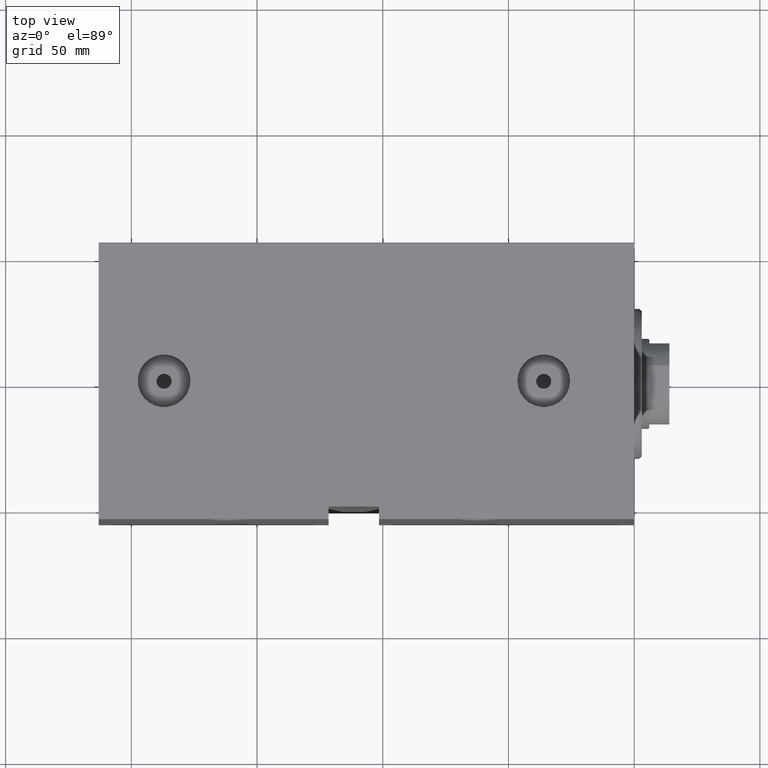
[diagram: clean part render]
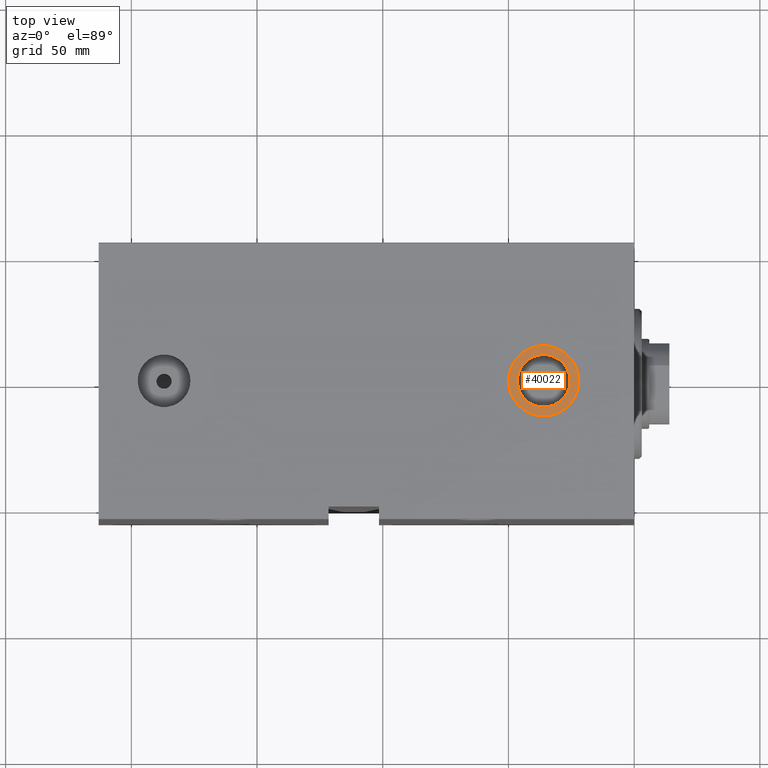
[diagram: same view with one face highlighted and labeled with its STEP entity id]
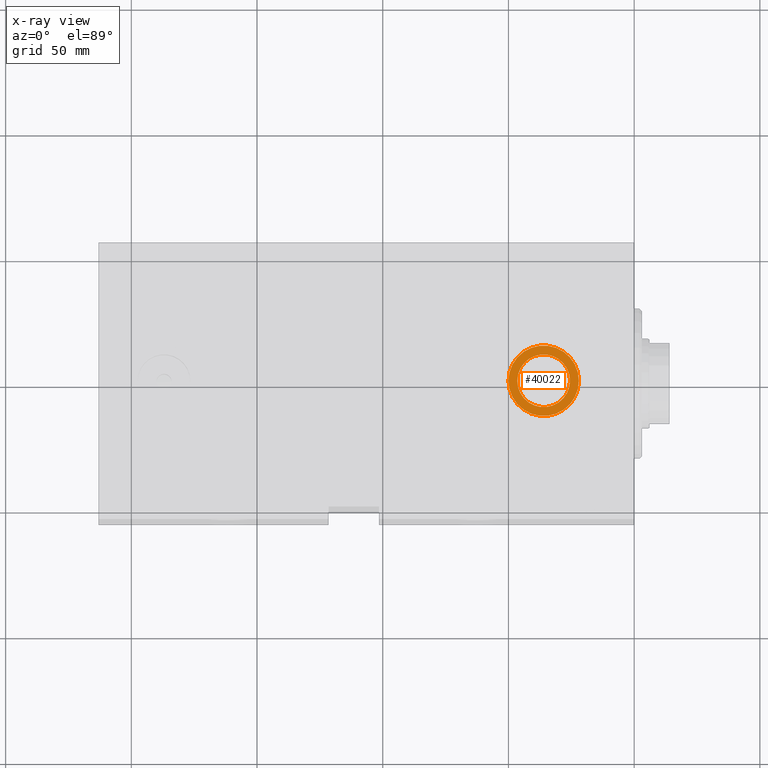
[diagram: x-ray of the same camera — body ghosted, the highlighted face saturated]
A machine part, top view. The second image highlights one B-rep face of the part: STEP entity #40022.
The next image is the same camera in x-ray: the body ghosted, the highlighted face saturated — about 0% of this face is hidden behind the body in this view.
In plain terms, the highlighted planar face has unit normal (0, 0, 1).
Its self-contained STEP definition (entity closure, byte-faithful):
#1119 = DIRECTION ( 'NONE',  ( 0.000000000000000000, 0.000000000000000000, 1.000000000000000000 ) ) ;
#1424 = EDGE_LOOP ( 'NONE', ( #23305, #30605 ) ) ;
#3470 = EDGE_CURVE ( 'NONE', #19761, #18929, #19198, .T. ) ;
#4038 = CARTESIAN_POINT ( 'NONE',  ( 36.00000000000000000, -8.831319514063746929E-15, 69.90000000000000568 ) ) ;
#4222 = EDGE_CURVE ( 'NONE', #28861, #38836, #24883, .T. ) ;
#6921 = AXIS2_PLACEMENT_3D ( 'NONE', #7300, #35134, #11577 ) ;
#7300 = CARTESIAN_POINT ( 'NONE',  ( 36.00000000000000000, -8.831319514063746929E-15, 69.90000000000000568 ) ) ;
#8065 = DIRECTION ( 'NONE',  ( 1.000000000000000000, 0.000000000000000000, -0.000000000000000000 ) ) ;
#8746 = DIRECTION ( 'NONE',  ( 1.000000000000000000, 0.000000000000000000, 0.000000000000000000 ) ) ;
#10865 = EDGE_CURVE ( 'NONE', #38836, #28861, #37676, .T. ) ;
#11327 = AXIS2_PLACEMENT_3D ( 'NONE', #20777, #34459, #35124 ) ;
#11577 = DIRECTION ( 'NONE',  ( 1.000000000000000000, 0.000000000000000000, 0.000000000000000000 ) ) ;
#11581 = EDGE_CURVE ( 'NONE', #18929, #19761, #30565, .T. ) ;
#11669 = CARTESIAN_POINT ( 'NONE',  ( 36.00000000000000000, -8.831319514063746929E-15, 69.90000000000000568 ) ) ;
#14856 = ORIENTED_EDGE ( 'NONE', *, *, #3470, .T. ) ;
#18126 = CARTESIAN_POINT ( 'NONE',  ( 21.99999999999999645, -7.116813995257453277E-15, 69.90000000000000568 ) ) ;
#18193 = AXIS2_PLACEMENT_3D ( 'NONE', #11669, #1119, #8065 ) ;
#18929 = VERTEX_POINT ( 'NONE', #18126 ) ;
#19198 = CIRCLE ( 'NONE', #11327, 13.99999999999999822 ) ;
#19761 = VERTEX_POINT ( 'NONE', #43715 ) ;
#20338 = CARTESIAN_POINT ( 'NONE',  ( 36.00000000000000000, -8.831319514063746929E-15, 69.90000000000000568 ) ) ;
#20777 = CARTESIAN_POINT ( 'NONE',  ( 36.00000000000000000, -8.831319514063746929E-15, 69.90000000000000568 ) ) ;
#21246 = AXIS2_PLACEMENT_3D ( 'NONE', #4038, #36788, #8746 ) ;
#23305 = ORIENTED_EDGE ( 'NONE', *, *, #4222, .F. ) ;
#24883 = CIRCLE ( 'NONE', #6921, 10.47999999999999687 ) ;
#26952 = AXIS2_PLACEMENT_3D ( 'NONE', #20338, #27947, #27065 ) ;
#27065 = DIRECTION ( 'NONE',  ( 1.000000000000000000, 0.000000000000000000, 0.000000000000000000 ) ) ;
#27159 = EDGE_LOOP ( 'NONE', ( #14856, #39100 ) ) ;
#27947 = DIRECTION ( 'NONE',  ( 0.000000000000000000, 0.000000000000000000, 1.000000000000000000 ) ) ;
#28861 = VERTEX_POINT ( 'NONE', #44393 ) ;
#30565 = CIRCLE ( 'NONE', #21246, 13.99999999999999822 ) ;
#30605 = ORIENTED_EDGE ( 'NONE', *, *, #10865, .F. ) ;
#34459 = DIRECTION ( 'NONE',  ( 0.000000000000000000, 0.000000000000000000, 1.000000000000000000 ) ) ;
#35124 = DIRECTION ( 'NONE',  ( 1.000000000000000000, 0.000000000000000000, 0.000000000000000000 ) ) ;
#35134 = DIRECTION ( 'NONE',  ( 0.000000000000000000, 0.000000000000000000, 1.000000000000000000 ) ) ;
#36230 = CARTESIAN_POINT ( 'NONE',  ( 25.52000000000000313, -7.547889668557321440E-15, 69.90000000000000568 ) ) ;
#36788 = DIRECTION ( 'NONE',  ( 0.000000000000000000, 0.000000000000000000, 1.000000000000000000 ) ) ;
#37676 = CIRCLE ( 'NONE', #26952, 10.47999999999999687 ) ;
#38587 = FACE_BOUND ( 'NONE', #1424, .T. ) ;
#38836 = VERTEX_POINT ( 'NONE', #36230 ) ;
#39100 = ORIENTED_EDGE ( 'NONE', *, *, #11581, .T. ) ;
#40022 = ADVANCED_FACE ( 'NONE', ( #38587, #42816 ), #42373, .T. ) ;
#42373 = PLANE ( 'NONE',  #18193 ) ;
#42816 = FACE_OUTER_BOUND ( 'NONE', #27159, .T. ) ;
#43715 = CARTESIAN_POINT ( 'NONE',  ( 49.99999999999999289, -8.831319514063746929E-15, 69.90000000000000568 ) ) ;
#44393 = CARTESIAN_POINT ( 'NONE',  ( 46.47999999999999687, -8.831319514063746929E-15, 69.90000000000000568 ) ) ;